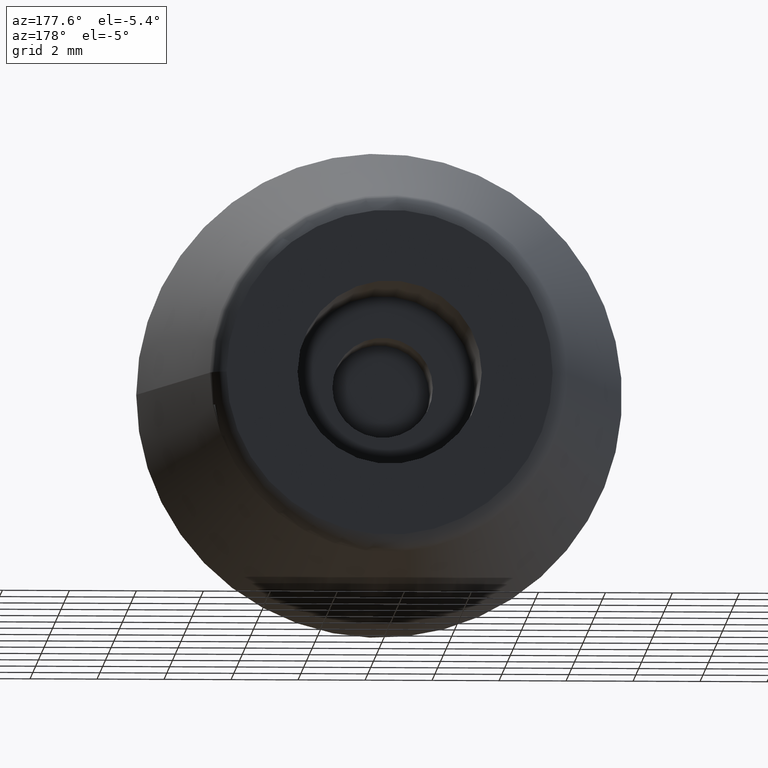
[diagram: clean part render]
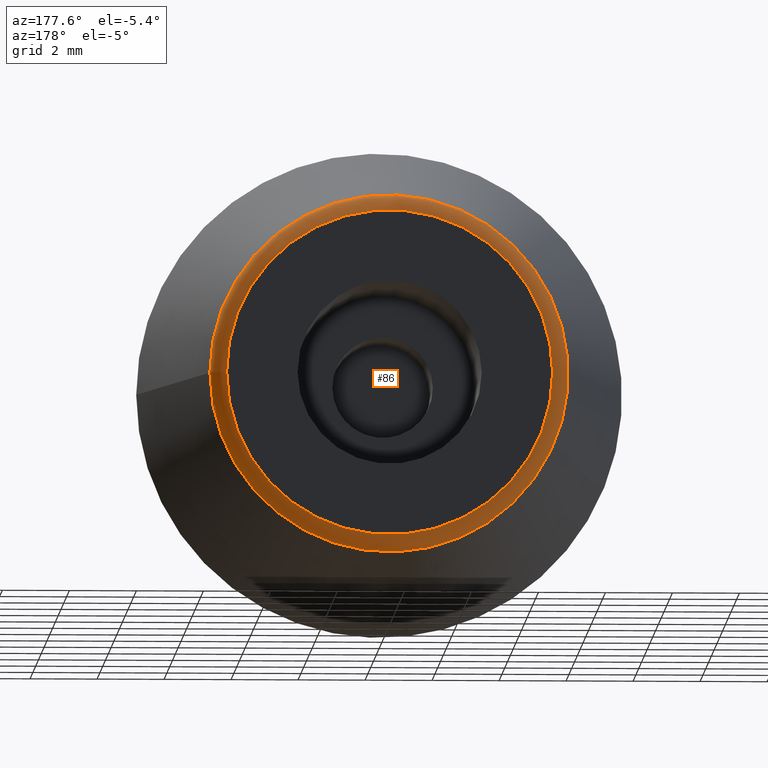
[diagram: same view with one face highlighted and labeled with its STEP entity id]
A machine part, auxiliary view. The second image highlights one B-rep face of the part: STEP entity #86.
In plain terms, the highlighted toroidal blend (fillet) surface has major radius 4.8659 mm and minor (blend) radius 0.5 mm.
Its self-contained STEP definition (entity closure, byte-faithful):
#22=FACE_BOUND('',#37,.T.);
#28=FACE_OUTER_BOUND('',#36,.T.);
#36=EDGE_LOOP('',(#71));
#37=EDGE_LOOP('',(#72));
#50=CIRCLE('',#97,4.865860843458);
#51=CIRCLE('',#98,5.34897831325862);
#57=VERTEX_POINT('',#145);
#58=VERTEX_POINT('',#147);
#64=EDGE_CURVE('',#57,#57,#50,.T.);
#65=EDGE_CURVE('',#58,#58,#51,.T.);
#71=ORIENTED_EDGE('',*,*,#64,.T.);
#72=ORIENTED_EDGE('',*,*,#65,.T.);
#85=TOROIDAL_SURFACE('',#96,4.865860843458,0.5);
#86=ADVANCED_FACE('',(#28,#22),#85,.T.);
#96=AXIS2_PLACEMENT_3D('',#144,#113,#114);
#97=AXIS2_PLACEMENT_3D('',#146,#115,#116);
#98=AXIS2_PLACEMENT_3D('',#148,#117,#118);
#113=DIRECTION('center_axis',(0.,-1.,0.));
#114=DIRECTION('ref_axis',(0.,0.,-1.));
#115=DIRECTION('center_axis',(0.,-1.,0.));
#116=DIRECTION('ref_axis',(-1.,0.,1.22464679914735E-16));
#117=DIRECTION('center_axis',(0.,1.,0.));
#118=DIRECTION('ref_axis',(-1.,0.,1.22464679914735E-16));
#144=CARTESIAN_POINT('Origin',(0.,7.,0.));
#145=CARTESIAN_POINT('',(4.865860843458,7.5,0.));
#146=CARTESIAN_POINT('Origin',(0.,7.5,0.));
#147=CARTESIAN_POINT('',(5.34897831325862,7.12883132528017,-1.31012183400816E-15));
#148=CARTESIAN_POINT('Origin',(0.,7.12883132528017,0.));